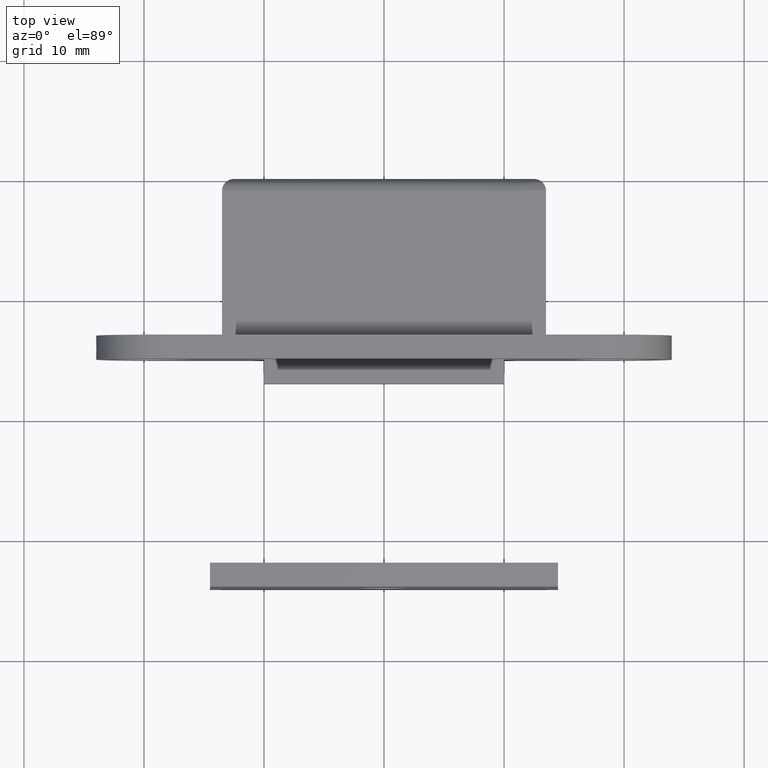
[diagram: clean part render]
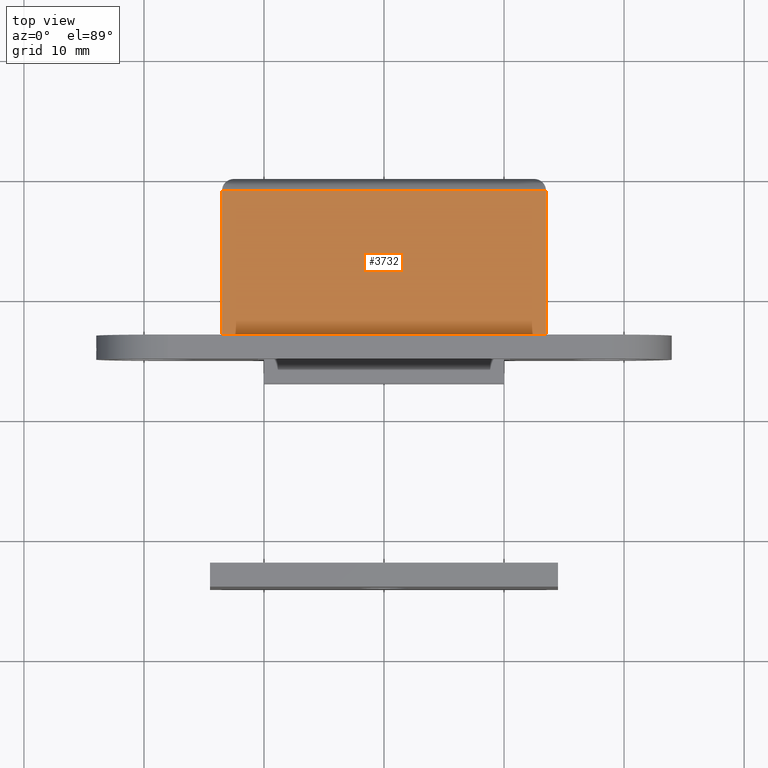
[diagram: same view with one face highlighted and labeled with its STEP entity id]
A machine part, top view. The second image highlights one B-rep face of the part: STEP entity #3732.
In plain terms, the highlighted face is a freeform B-spline surface patch.
Its self-contained STEP definition (entity closure, byte-faithful):
#3094=CARTESIAN_POINT('',(-13.500000000000000,-13.0,4.500000000000000));
#3095=VERTEX_POINT('',#3094);
#3096=CARTESIAN_POINT('',(-13.500000000000000,-1.0,4.500000000000000));
#3097=VERTEX_POINT('',#3096);
#3098=CARTESIAN_POINT('',(-13.500000000000000,-13.0,4.500000000000000));
#3099=CARTESIAN_POINT('',(-13.500000000000000,-1.0,4.500000000000000));
#3100=QUASI_UNIFORM_CURVE('',1,(#3098,#3099),.UNSPECIFIED.,.F.,.U.);
#3101=EDGE_CURVE('',#3095,#3097,#3100,.T.);
#3279=CARTESIAN_POINT('',(13.499995999999999,-1.0,4.500000000000000));
#3280=VERTEX_POINT('',#3279);
#3296=CARTESIAN_POINT('',(13.499995999999999,-1.0,4.500000000000000));
#3297=CARTESIAN_POINT('',(-13.500000000000000,-1.0,4.500000000000000));
#3298=QUASI_UNIFORM_CURVE('',1,(#3296,#3297),.UNSPECIFIED.,.F.,.U.);
#3299=EDGE_CURVE('',#3280,#3097,#3298,.T.);
#3680=CARTESIAN_POINT('',(13.499995999999960,-13.0,4.500000000000000));
#3681=VERTEX_POINT('',#3680);
#3682=CARTESIAN_POINT('',(13.499995999999960,-13.0,4.500000000000000));
#3683=CARTESIAN_POINT('',(13.499995999999999,-1.0,4.500000000000000));
#3684=QUASI_UNIFORM_CURVE('',1,(#3682,#3683),.UNSPECIFIED.,.F.,.U.);
#3685=EDGE_CURVE('',#3681,#3280,#3684,.T.);
#3717=CARTESIAN_POINT('',(-14.848649747868770,-0.400600023258329,4.500000000000000));
#3718=CARTESIAN_POINT('',(-14.848649747868770,-13.599400298606760,4.500000000000000));
#3719=CARTESIAN_POINT('',(14.848646472065100,-0.400600023258329,4.500000000000000));
#3720=CARTESIAN_POINT('',(14.848646472065100,-13.599400298606760,4.500000000000000));
#3721=B_SPLINE_SURFACE_WITH_KNOTS('',1,1,((#3717,#3719),(#3718,#3720)),.UNSPECIFIED.,.F.,.F.,.U.,(2,2),(2,2),(0.0,13.198800275348431),(0.0,29.697296219933872),.UNSPECIFIED.);
#3722=ORIENTED_EDGE('',*,*,#3685,.T.);
#3723=ORIENTED_EDGE('',*,*,#3299,.T.);
#3724=ORIENTED_EDGE('',*,*,#3101,.F.);
#3725=CARTESIAN_POINT('',(13.499995999999960,-13.0,4.500000000000000));
#3726=CARTESIAN_POINT('',(-13.500000000000000,-13.0,4.500000000000000));
#3727=QUASI_UNIFORM_CURVE('',1,(#3725,#3726),.UNSPECIFIED.,.F.,.U.);
#3728=EDGE_CURVE('',#3681,#3095,#3727,.T.);
#3729=ORIENTED_EDGE('',*,*,#3728,.F.);
#3730=EDGE_LOOP('',(#3722,#3723,#3724,#3729));
#3731=FACE_OUTER_BOUND('',#3730,.T.);
#3732=ADVANCED_FACE('',(#3731),#3721,.T.);